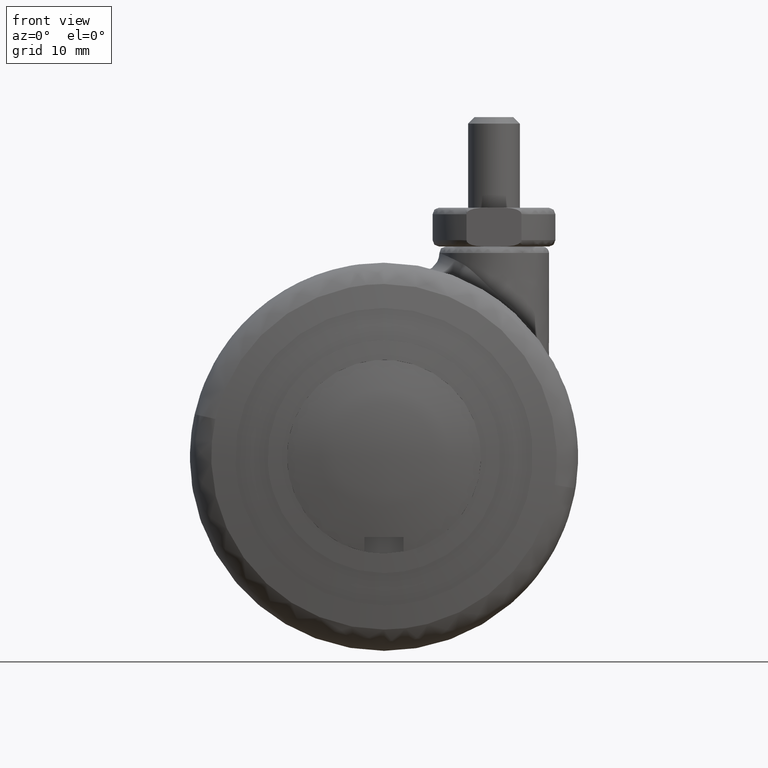
[diagram: clean part render]
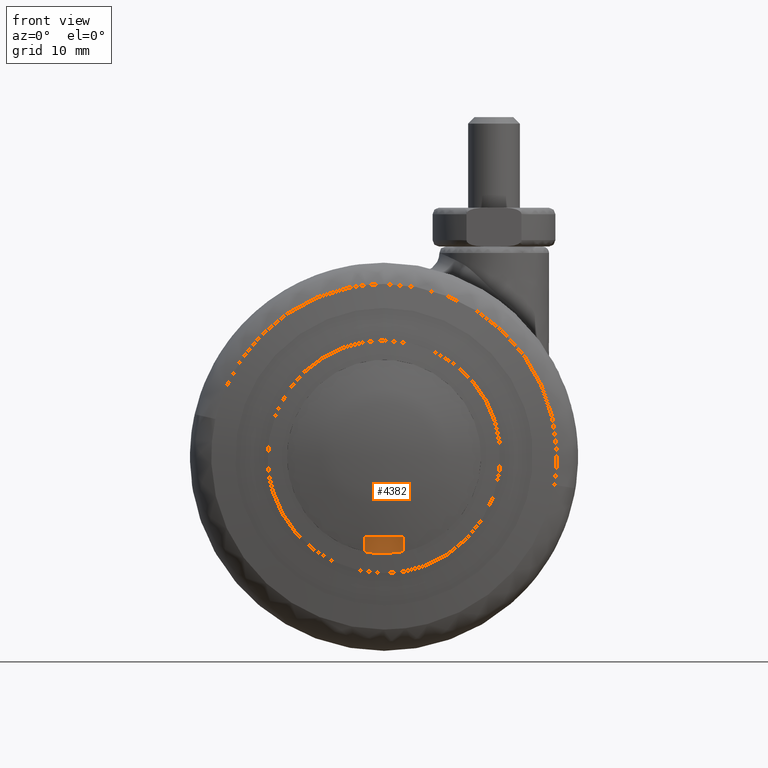
[diagram: same view with one face highlighted and labeled with its STEP entity id]
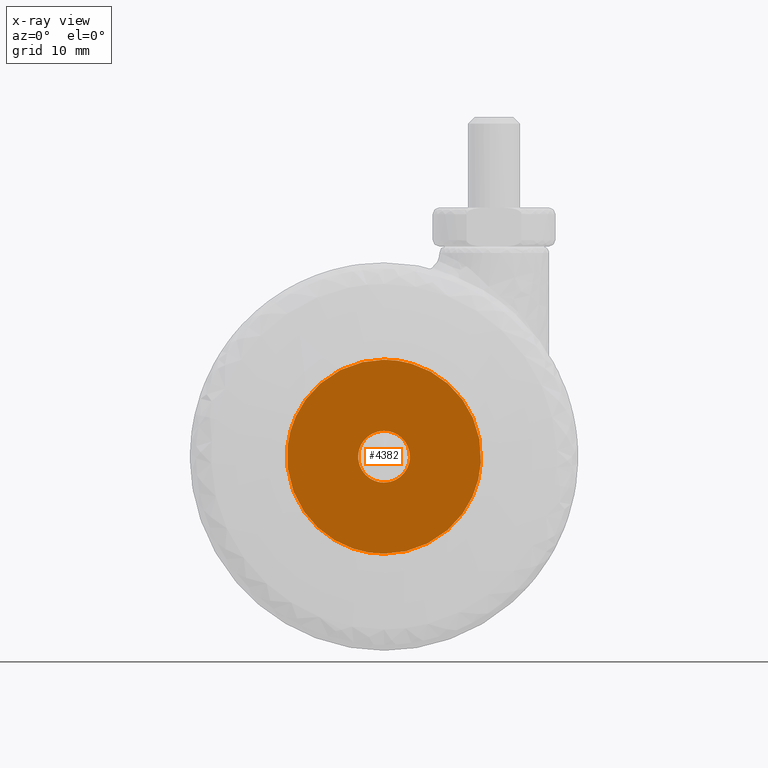
[diagram: x-ray of the same camera — body ghosted, the highlighted face saturated]
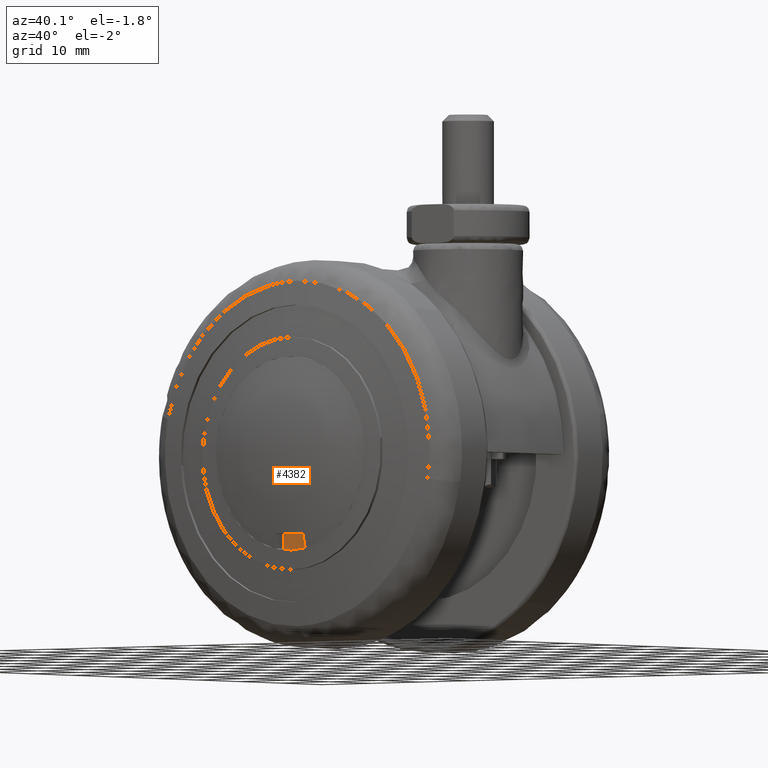
[diagram: same view with one face highlighted and labeled with its STEP entity id]
A machine part, front view. The second image highlights one B-rep face of the part: STEP entity #4382.
The next image is the same camera in x-ray: the body ghosted, the highlighted face saturated — about 0% of this face is hidden behind the body in this view.
A second angle (auxiliary view) of the same face is appended — the face is thin or edge-on in the first view.
In plain terms, the highlighted face is a freeform B-spline surface patch.
Its self-contained STEP definition (entity closure, byte-faithful):
#2310=CARTESIAN_POINT('',(-3.972038105448172,-20.500000000000000,0.472136938681658));
#2311=VERTEX_POINT('',#2310);
#2312=CARTESIAN_POINT('',(0.0,-20.500000000000000,-4.0));
#2313=VERTEX_POINT('',#2312);
#2314=CARTESIAN_POINT('',(-3.972038105448173,-20.500000000000004,0.472136938681658));
#2315=CARTESIAN_POINT('',(-4.000000000000001,-20.499999999999996,0.236896478662842));
#2316=CARTESIAN_POINT('',(-4.0,-20.500000000000000,0.0));
#2317=CARTESIAN_POINT('',(-4.000000000000000,-20.500000000000007,-4.000000000000000));
#2318=CARTESIAN_POINT('',(0.0,-20.500000000000000,-4.0));
#2326=(BOUNDED_CURVE()B_SPLINE_CURVE(2,(#2314,#2315,#2316,#2317,#2318),.UNSPECIFIED.,.F.,.U.)B_SPLINE_CURVE_WITH_KNOTS((3,2,3),(0.229562473510996,0.250000000000000,0.500000000000000),.UNSPECIFIED.)CURVE()GEOMETRIC_REPRESENTATION_ITEM()RATIONAL_B_SPLINE_CURVE((0.956026754178775,0.976055948328202,1.0,0.707106781186548,1.0))REPRESENTATION_ITEM(''));
#2327=EDGE_CURVE('',#2311,#2313,#2326,.T.);
#2329=CARTESIAN_POINT('',(3.992539193674018,-20.500000000000000,-0.244194158359319));
#2330=VERTEX_POINT('',#2329);
#2331=CARTESIAN_POINT('',(0.0,-20.500000000000000,-4.0));
#2332=CARTESIAN_POINT('',(3.762824267207531,-20.500000000000000,-4.000000000000001));
#2333=CARTESIAN_POINT('',(3.992539193674018,-20.500000000000004,-0.244194158359319));
#2341=(BOUNDED_CURVE()B_SPLINE_CURVE(2,(#2331,#2332,#2333),.UNSPECIFIED.,.F.,.U.)B_SPLINE_CURVE_WITH_KNOTS((3,3),(0.500000000000000,0.739332962222962),.UNSPECIFIED.)CURVE()GEOMETRIC_REPRESENTATION_ITEM()RATIONAL_B_SPLINE_CURVE((1.0,0.719603993305433,0.976072041632468))REPRESENTATION_ITEM(''));
#2342=EDGE_CURVE('',#2313,#2330,#2341,.T.);
#2409=CARTESIAN_POINT('',(0.0,-20.500000000000000,4.0));
#2410=VERTEX_POINT('',#2409);
#2411=CARTESIAN_POINT('',(0.0,-20.500000000000000,4.0));
#2412=CARTESIAN_POINT('',(-3.552698103707067,-20.500000000000007,4.0));
#2413=CARTESIAN_POINT('',(-3.972038105448172,-20.499999999999996,0.472136938681658));
#2421=(BOUNDED_CURVE()B_SPLINE_CURVE(2,(#2411,#2412,#2413),.UNSPECIFIED.,.F.,.U.)B_SPLINE_CURVE_WITH_KNOTS((3,3),(0.0,0.229562473510996),.UNSPECIFIED.)CURVE()GEOMETRIC_REPRESENTATION_ITEM()RATIONAL_B_SPLINE_CURVE((1.0,0.731050832858346,0.956026754178775))REPRESENTATION_ITEM(''));
#2422=EDGE_CURVE('',#2410,#2311,#2421,.T.);
#2456=CARTESIAN_POINT('',(3.992539193674018,-20.500000000000000,-0.244194158359319));
#2457=CARTESIAN_POINT('',(4.000000000000001,-20.500000000000000,-0.122211053414863));
#2458=CARTESIAN_POINT('',(4.0,-20.500000000000000,0.0));
#2459=CARTESIAN_POINT('',(4.000000000000000,-20.500000000000007,4.000000000000000));
#2460=CARTESIAN_POINT('',(0.0,-20.500000000000000,4.0));
#2468=(BOUNDED_CURVE()B_SPLINE_CURVE(2,(#2456,#2457,#2458,#2459,#2460),.UNSPECIFIED.,.F.,.U.)B_SPLINE_CURVE_WITH_KNOTS((3,2,3),(0.739332962222962,0.750000000000000,1.0),.UNSPECIFIED.)CURVE()GEOMETRIC_REPRESENTATION_ITEM()RATIONAL_B_SPLINE_CURVE((0.976072041632468,0.987502787881115,1.0,0.707106781186548,1.0))REPRESENTATION_ITEM(''));
#2469=EDGE_CURVE('',#2330,#2410,#2468,.T.);
#2530=CARTESIAN_POINT('',(14.972022726152611,-20.500000000000000,-0.915715833334168));
#2531=VERTEX_POINT('',#2530);
#2537=CARTESIAN_POINT('',(0.0,-20.500000000000000,-15.0));
#2538=VERTEX_POINT('',#2537);
#2539=CARTESIAN_POINT('',(0.0,-20.500000000000000,-15.0));
#2540=CARTESIAN_POINT('',(14.110602579495341,-20.500000000000004,-15.000000000000002));
#2541=CARTESIAN_POINT('',(14.972022726152613,-20.500000000000004,-0.915715833334168));
#2549=(BOUNDED_CURVE()B_SPLINE_CURVE(2,(#2539,#2540,#2541),.UNSPECIFIED.,.F.,.U.)B_SPLINE_CURVE_WITH_KNOTS((3,3),(0.500000000000000,0.739333103530176),.UNSPECIFIED.)CURVE()GEOMETRIC_REPRESENTATION_ITEM()RATIONAL_B_SPLINE_CURVE((1.0,0.719603827753734,0.976072344480913))REPRESENTATION_ITEM(''));
#2550=EDGE_CURVE('',#2538,#2531,#2549,.T.);
#2552=CARTESIAN_POINT('',(-14.895144786503650,-20.500000000000000,1.770497610514154));
#2553=VERTEX_POINT('',#2552);
#2554=CARTESIAN_POINT('',(-14.895144786503657,-20.500000000000000,1.770497610514154));
#2555=CARTESIAN_POINT('',(-15.000000000000002,-20.500000000000000,0.888353756015574));
#2556=CARTESIAN_POINT('',(-15.0,-20.500000000000000,0.0));
#2557=CARTESIAN_POINT('',(-14.999999999999996,-20.499999999999996,-14.999999999999996));
#2558=CARTESIAN_POINT('',(0.0,-20.500000000000000,-15.0));
#2566=(BOUNDED_CURVE()B_SPLINE_CURVE(2,(#2554,#2555,#2556,#2557,#2558),.UNSPECIFIED.,.F.,.U.)B_SPLINE_CURVE_WITH_KNOTS((3,2,3),(0.229562654026155,0.250000000000000,0.500000000000000),.UNSPECIFIED.)CURVE()GEOMETRIC_REPRESENTATION_ITEM()RATIONAL_B_SPLINE_CURVE((0.956027107996180,0.976056159814866,1.0,0.707106781186547,1.0))REPRESENTATION_ITEM(''));
#2567=EDGE_CURVE('',#2553,#2538,#2566,.T.);
#2611=CARTESIAN_POINT('',(0.0,-20.500000000000000,15.0));
#2612=VERTEX_POINT('',#2611);
#2613=CARTESIAN_POINT('',(0.0,-20.500000000000000,15.0));
#2614=CARTESIAN_POINT('',(-13.322632219189046,-20.499999999999996,14.999999999999993));
#2615=CARTESIAN_POINT('',(-14.895144786503657,-20.500000000000000,1.770497610514154));
#2623=(BOUNDED_CURVE()B_SPLINE_CURVE(2,(#2613,#2614,#2615),.UNSPECIFIED.,.F.,.U.)B_SPLINE_CURVE_WITH_KNOTS((3,3),(0.0,0.229562654026155),.UNSPECIFIED.)CURVE()GEOMETRIC_REPRESENTATION_ITEM()RATIONAL_B_SPLINE_CURVE((1.0,0.731050621371682,0.956027107996180))REPRESENTATION_ITEM(''));
#2624=EDGE_CURVE('',#2612,#2553,#2623,.T.);
#2626=CARTESIAN_POINT('',(14.972022726152613,-20.500000000000004,-0.915715833334168));
#2627=CARTESIAN_POINT('',(14.999999999999996,-20.500000000000004,-0.458285302447390));
#2628=CARTESIAN_POINT('',(15.0,-20.500000000000000,0.0));
#2629=CARTESIAN_POINT('',(14.999999999999996,-20.499999999999996,14.999999999999996));
#2630=CARTESIAN_POINT('',(0.0,-20.500000000000000,15.0));
#2638=(BOUNDED_CURVE()B_SPLINE_CURVE(2,(#2626,#2627,#2628,#2629,#2630),.UNSPECIFIED.,.F.,.U.)B_SPLINE_CURVE_WITH_KNOTS((3,2,3),(0.739333103530176,0.750000000000000,1.0),.UNSPECIFIED.)CURVE()GEOMETRIC_REPRESENTATION_ITEM()RATIONAL_B_SPLINE_CURVE((0.976072344480913,0.987502953432813,1.0,0.707106781186547,1.0))REPRESENTATION_ITEM(''));
#2639=EDGE_CURVE('',#2531,#2612,#2638,.T.);
#4365=CARTESIAN_POINT('',(-16.498227968032619,-20.500000000000000,16.498499941854181));
#4366=CARTESIAN_POINT('',(16.498134895379799,-20.500000000000000,16.498499941854181));
#4367=CARTESIAN_POINT('',(-16.498227968032619,-20.500000000000000,-16.498500746516889));
#4368=CARTESIAN_POINT('',(16.498134895379799,-20.500000000000000,-16.498500746516889));
#4369=B_SPLINE_SURFACE_WITH_KNOTS('',1,1,((#4365,#4367),(#4366,#4368)),.UNSPECIFIED.,.F.,.F.,.U.,(2,2),(2,2),(0.0,32.996362863412422),(0.0,32.997000688371060),.UNSPECIFIED.);
#4370=ORIENTED_EDGE('',*,*,#2624,.T.);
#4371=ORIENTED_EDGE('',*,*,#2567,.T.);
#4372=ORIENTED_EDGE('',*,*,#2550,.T.);
#4373=ORIENTED_EDGE('',*,*,#2639,.T.);
#4374=EDGE_LOOP('',(#4370,#4371,#4372,#4373));
#4375=FACE_OUTER_BOUND('',#4374,.T.);
#4376=ORIENTED_EDGE('',*,*,#2342,.F.);
#4377=ORIENTED_EDGE('',*,*,#2327,.F.);
#4378=ORIENTED_EDGE('',*,*,#2422,.F.);
#4379=ORIENTED_EDGE('',*,*,#2469,.F.);
#4380=EDGE_LOOP('',(#4376,#4377,#4378,#4379));
#4381=FACE_BOUND('',#4380,.T.);
#4382=ADVANCED_FACE('',(#4375,#4381),#4369,.F.);